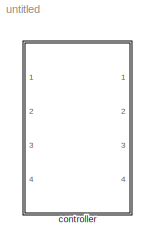
MODEL untitled
KIND model
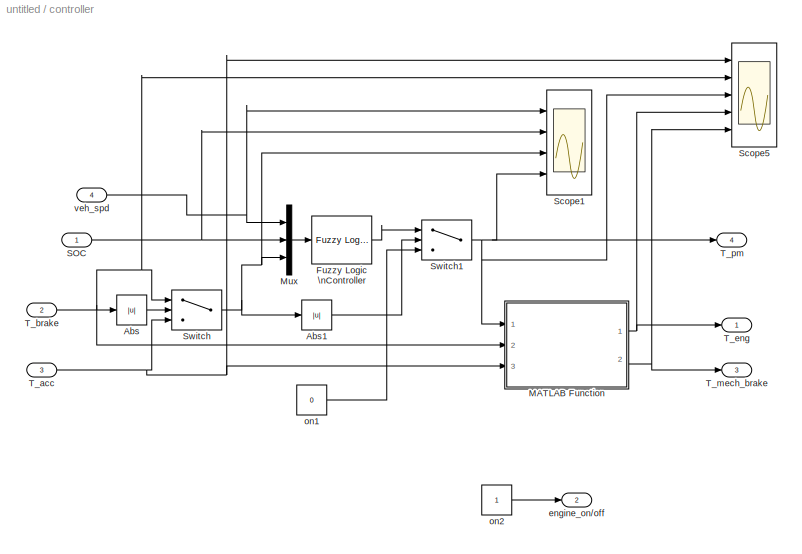
BLOCK [SubSystem] controller
  FunctionWithSeparateData = off
  MaskHideContents = off
  MinAlgLoopOccurrences = off
  Opaque = off
  Ports = [4, 4]
  PropExecContextOutsideSubsystem = off
  RTWSystemCode = Auto
  RequestExecContextInheritance = off
  SID = 1
BLOCK [Abs] controller/Abs
  SID = 6
  SaturateOnIntegerOverflow = off
BLOCK [Abs] controller/Abs1
  SID = 7
  SaturateOnIntegerOverflow = off
BLOCK [Reference] controller/Fuzzy Logic \nController  REF=fuzblock/Fuzzy Logic \nController  (lib defined in mdl_858b3b3e7478)
  FunctionWithSeparateData = off
  GeneratePreprocessorConditionals = off
  Ports = [1, 1]
  RTWMemSecDataConstants = Inherit from model
  RTWMemSecDataInternal = Inherit from model
  RTWMemSecDataParameters = Inherit from model
  RTWMemSecFuncExecute = Inherit from model
  RTWMemSecFuncInitTerm = Inherit from model
  SID = 8
  ShowPortLabels = FromPortIcon
  SourceBlock = fuzblock/Fuzzy Logic \nController
  SourceType = FIS
  SystemSampleTime = -1
  fis = fuzy_controller1
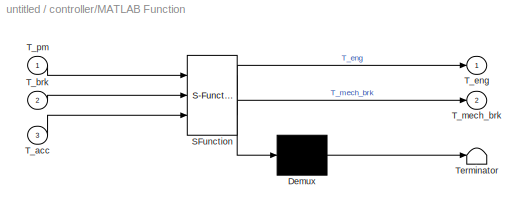
BLOCK [SubSystem] controller/MATLAB Function
  ErrorFcn = Stateflow.Translate.translate
  FunctionWithSeparateData = off
  MaskDescription = Embedded MATLAB block
  MaskDisplay = bgColor = Simulink.Root.ColorString2Rgb(get_param(gcbh, 'BackgroundColor')); image(imread('private/eml_membrane_16.png','png','BackgroundColor',bgColor(1:3)),'center'); disp([10 10 'fcn']);
  MaskHideContents = off
  MaskIconFrame = on
  MaskIconOpaque = off
  MaskIconRotate = none
  MaskIconUnits = normalized
  MaskPortRotate = default
  MaskSelfModifiable = on
  MaskType = Stateflow
  MinAlgLoopOccurrences = off
  Opaque = off
  PermitHierarchicalResolution = ExplicitOnly
  Ports = [3, 2]
  PropExecContextOutsideSubsystem = off
  RTWSystemCode = Auto
  RequestExecContextInheritance = off
  SID = 9
  TreatAsAtomicUnit = on
BLOCK [Demux] controller/MATLAB Function/ Demux 
  Outputs = 1
  Ports = [1, 1]
  SID = 9::15
BLOCK [S-Function] controller/MATLAB Function/ SFunction 
  EnableBusSupport = on
  FunctionName = sf_sfun
  PortCounts = [3 3]
  Ports = [3, 3]
  SID = 9::14
  Tag = Stateflow S-Function untitled 3
BLOCK [Terminator] controller/MATLAB Function/ Terminator 
  SID = 9::17
BLOCK [Inport] controller/MATLAB Function/T_acc
  IconDisplay = Port number
  Port = 3
  SID = 9::19
BLOCK [Inport] controller/MATLAB Function/T_brk
  IconDisplay = Port number
  Port = 2
  SID = 9::18
BLOCK [Outport] controller/MATLAB Function/T_eng
  IconDisplay = Port number
  SID = 9::5
BLOCK [Outport] controller/MATLAB Function/T_mech_brk
  IconDisplay = Port number
  Port = 2
  SID = 9::20
BLOCK [Inport] controller/MATLAB Function/T_pm
  IconDisplay = Port number
  SID = 9::1
BLOCK [Mux] controller/Mux
  DisplayOption = bar
  Inputs = 3
  Ports = [3, 1]
  SID = 10
BLOCK [Inport] controller/SOC
  IconDisplay = Port number
  SID = 2
BLOCK [Scope] controller/Scope1
  DataFormat = StructureWithTime
  Floating = off
  LimitDataPoints = off
  MaxDataPoints = 500
  NumInputPorts = 4
  Ports = [4]
  SID = 11
  SampleTime = 0
  SaveName = ScopeData17
  YMax = 17.5~45.5~1000~175
  YMin = -2.5~41.5~-14000~0
  ZoomMode = xonly
BLOCK [Scope] controller/Scope5
  DataFormat = StructureWithTime
  Floating = off
  LimitDataPoints = off
  MaxDataPoints = 500
  NumInputPorts = 5
  Ports = [5]
  SID = 12
  SampleTime = 0
  SaveName = ScopeData21
  YMax = 1000~500~5~5~5
  YMin = 0~-350~-5~-5~-5
  ZoomMode = xonly
BLOCK [Switch] controller/Switch
  Criteria = u2 > Threshold
  InputSameDT = off
  SID = 13
  SaturateOnIntegerOverflow = off
  Threshold = 0.1
BLOCK [Switch] controller/Switch1
  Criteria = u2 > Threshold
  InputSameDT = off
  SID = 14
  SaturateOnIntegerOverflow = off
  Threshold = 0.1
BLOCK [Inport] controller/T_acc
  IconDisplay = Port number
  Port = 3
  SID = 4
BLOCK [Inport] controller/T_brake
  IconDisplay = Port number
  Port = 2
  SID = 3
BLOCK [Outport] controller/T_eng
  IconDisplay = Port number
  SID = 17
BLOCK [Outport] controller/T_mech_brake
  IconDisplay = Port number
  Port = 3
  SID = 19
BLOCK [Outport] controller/T_pm
  IconDisplay = Port number
  Port = 4
  SID = 20
BLOCK [Outport] controller/engine_on//off
  IconDisplay = Port number
  Port = 2
  SID = 18
BLOCK [Constant] controller/on1
  SID = 15
  Value = 0
BLOCK [Constant] controller/on2
  SID = 16
BLOCK [Inport] controller/veh_spd
  IconDisplay = Port number
  Port = 4
  SID = 5
LINE controller/Abs1:1 -> controller/Switch1:2
LINE controller/Abs:1 -> controller/Switch:2
LINE controller/Fuzzy Logic \nController:1 -> controller/Switch1:1
LINE controller/MATLAB Function/ Demux :1 -> controller/MATLAB Function/ Terminator :1
LINE controller/MATLAB Function/ SFunction :1 -> controller/MATLAB Function/ Demux :1
LINE controller/MATLAB Function/ SFunction :2 -> controller/MATLAB Function/T_eng:1
LINE controller/MATLAB Function/ SFunction :3 -> controller/MATLAB Function/T_mech_brk:1
LINE controller/MATLAB Function/T_acc:1 -> controller/MATLAB Function/ SFunction :3
LINE controller/MATLAB Function/T_brk:1 -> controller/MATLAB Function/ SFunction :2
LINE controller/MATLAB Function/T_pm:1 -> controller/MATLAB Function/ SFunction :1
NET controller/MATLAB Function:1 -> controller/Scope5:4, controller/T_eng:1
NET controller/MATLAB Function:2 -> controller/Scope5:5, controller/T_mech_brake:1
LINE controller/Mux:1 -> controller/Fuzzy Logic \nController:1
NET controller/SOC:1 -> controller/Mux:2, controller/Scope1:2
NET controller/Switch1:1 -> controller/MATLAB Function:1, controller/Scope1:4, controller/Scope5:3, controller/T_pm:1
NET controller/Switch:1 -> controller/Abs1:1, controller/Mux:3, controller/Scope1:3
NET controller/T_acc:1 -> controller/MATLAB Function:3, controller/Scope5:1, controller/Switch:3
NET controller/T_brake:1 -> controller/Abs:1, controller/MATLAB Function:2, controller/Scope5:2, controller/Switch:1
LINE controller/on1:1 -> controller/Switch1:3
LINE controller/on2:1 -> controller/engine_on//off:1
NET controller/veh_spd:1 -> controller/Mux:1, controller/Scope1:1
note: NET lines group one-source signal fan-out (src -> all destinations, sorted); 1:1 wires keep LINE
CHART controller/MATLAB Function states=1 transitions=1
  STATE_LABEL 'eML_blk_kernel()'
